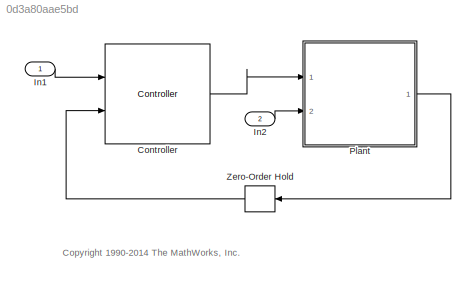
MODEL slx_0d3a80aae5bd
KIND model
CONFIG AbsTol = auto
CONFIG FixedStep = auto
CONFIG MaxStep = auto
CONFIG MinStep = auto
CONFIG PostLoadFcn = load 'sltestHeatpumpBusPostLoadFcn.mat'\nload 'temp_input.mat'
CONFIG RelTol = 1e-3
CONFIG SampleTimeConstraint = Unconstrained
CONFIG Solver = ode3
CONFIG SolverMode = Auto
CONFIG SolverName = ode3
CONFIG StartTime = 0.0
CONFIG StopTime = 3600
WORKSPACE source: MAT-file member
WORKSPACE MCOS: class17 (value not decoded)
WORKSPACE MCOS: class17 (value not decoded)
WORKSPACE MCOS: class17 (value not decoded)
BLOCK [Reference] Controller  REF=sltestHeatpumpLibraryExample/Controller
  Ports = [2, 1]
  SourceBlock = sltestHeatpumpLibraryExample/Controller
  SourceType = SubSystem
BLOCK [Inport] In1
  IconDisplay = Port number
BLOCK [Inport] In2
  IconDisplay = Port number
  Port = 2
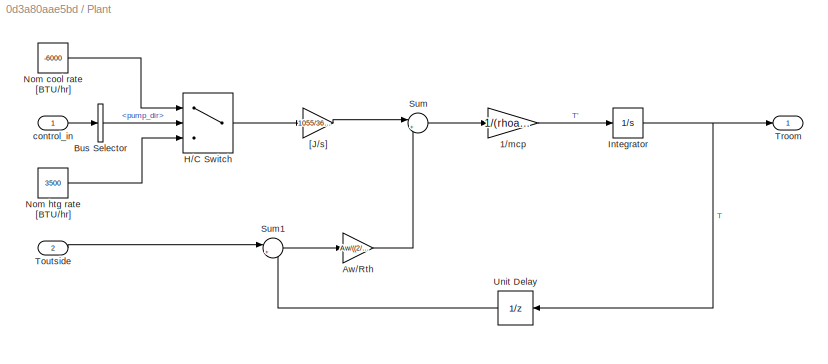
BLOCK [SubSystem] Plant
  MinAlgLoopOccurrences = on
  Ports = [2, 1]
  RequestExecContextInheritance = off
  TreatAsAtomicUnit = on
  Variant = off
BLOCK [Gain] Plant/1//mcp
  Gain = 1/(rhoair*V*cpair)
  OutDataTypeStr = Inherit: Inherit via internal rule
  ParamDataTypeStr = Inherit: Inherit via internal rule
  SaturateOnIntegerOverflow = off
BLOCK [Gain] Plant/Aw//Rth
  Gain = Aw/((2/h)*(Lw/kw))
  OutDataTypeStr = Inherit: Inherit via internal rule
  ParamDataTypeStr = Inherit: Inherit via internal rule
  SaturateOnIntegerOverflow = off
BLOCK [BusSelector] Plant/Bus Selector
  OutputSignals = pump_dir
  Ports = [1, 1]
BLOCK [Switch] Plant/H//C Switch
  Criteria = u2 > Threshold
  InputSameDT = off
  SaturateOnIntegerOverflow = off
BLOCK [Integrator] Plant/Integrator
  InitialCondition = 75
  Ports = [1, 1]
BLOCK [Constant] Plant/Nom cool rate [BTU//hr]
  Value = -6000
BLOCK [Constant] Plant/Nom htg rate [BTU//hr]
  Value = 3500
BLOCK [Sum] Plant/Sum
  IconShape = round
  InputSameDT = off
  Inputs = |++
  OutDataTypeStr = Inherit: Inherit via internal rule
  Ports = [2, 1]
  SaturateOnIntegerOverflow = off
BLOCK [Sum] Plant/Sum1
  IconShape = round
  InputSameDT = off
  Inputs = |+-
  OutDataTypeStr = Inherit: Inherit via internal rule
  Ports = [2, 1]
  SaturateOnIntegerOverflow = off
BLOCK [Inport] Plant/Toutside
  IconDisplay = Port number
  Port = 2
BLOCK [Outport] Plant/Troom
  IconDisplay = Port number
BLOCK [UnitDelay] Plant/Unit Delay
  InitialCondition = 75
  InputProcessing = Elements as channels (sample based)
  SampleTime = -1
BLOCK [Gain] Plant/[J//s]
  Gain = 1055/3600
  OutDataTypeStr = Inherit: Inherit via internal rule
  ParamDataTypeStr = Inherit: Inherit via internal rule
  SaturateOnIntegerOverflow = off
BLOCK [Inport] Plant/control_in
  IconDisplay = Port number
BLOCK [ZeroOrderHold] Zero-Order Hold
ANNOTATION (root): <copyright redacted>
LINE Controller:1 -> Plant:1
LINE In1:1 -> Controller:1
LINE In2:1 -> Plant:2
LINE Plant/1//mcp:1 -> Plant/Integrator:1
LINE Plant/Aw//Rth:1 -> Plant/Sum:2
LINE Plant/Bus Selector:1 -> Plant/H//C Switch:2
LINE Plant/H//C Switch:1 -> Plant/[J//s]:1
NET Plant/Integrator:1 -> Plant/Troom:1, Plant/Unit Delay:1
LINE Plant/Nom cool rate [BTU//hr]:1 -> Plant/H//C Switch:1
LINE Plant/Nom htg rate [BTU//hr]:1 -> Plant/H//C Switch:3
LINE Plant/Sum1:1 -> Plant/Aw//Rth:1
LINE Plant/Sum:1 -> Plant/1//mcp:1
LINE Plant/Toutside:1 -> Plant/Sum1:1
LINE Plant/Unit Delay:1 -> Plant/Sum1:2
LINE Plant/[J//s]:1 -> Plant/Sum:1
LINE Plant/control_in:1 -> Plant/Bus Selector:1
LINE Plant:1 -> Zero-Order Hold:1
LINE Zero-Order Hold:1 -> Controller:2
note: NET lines group one-source signal fan-out (src -> all destinations, sorted); 1:1 wires keep LINE
CHART Test Assessment states=6 transitions=22
  STATE_LABEL 'Test_Assessments'
  STATE_LABEL "Check_idle\na = control_out.fan_cmd == 0 &&...\n    control_out.pump_cmd == 0 &&...\n    control_out.pump_dir == 0;\nverify(a,'All signals must be off at idle');"
  STATE_LABEL "Check_fan\na = control_out.fan_cmd == 1 &&...\n    control_out.pump_cmd == 0 &&...\n    control_out.pump_dir == 0;\nverify(a, 'Only fan shall be active when 2 < delta T < 4');"
  STATE_LABEL "Check_cooling\na = control_out.fan_cmd == 1 &&...\n    control_out.pump_cmd == 1 &&...\n    control_out.pump_dir == 1;\nverify(a,'Cooling signal failure'),"
  STATE_LABEL "Check_heating\na = control_out.fan_cmd == 1 &&...\n    control_out.pump_cmd == 1 &&...\n    control_out.pump_dir == -1;\nverify(a,'Heating signal failure'),"
  STATE_LABEL 'Else'
  STATE_LABEL '[abs(Troom_in - Tset) < 2]'
  STATE_LABEL '[~in(Check_idle)]'
  STATE_LABEL '[abs(Troom_in - Tset) >= 2 && abs(Troom_in - Tset) < 4]'
  STATE_LABEL '[~in(Check_fan)]'
  STATE_LABEL '[(Troom_in - Tset) >= 4]'
  STATE_LABEL '[~in(Check_cooling)]'
  STATE_LABEL '[(Troom_in - Tset) <= -4]'
  STATE_LABEL '[~in(Check_heating)]'
  STATE_LABEL '[~in(Else)]'
  STATE_LABEL "Check_idle\na = control_out.fan_cmd == 0 &&...\n    control_out.pump_cmd == 0 &&...\n    control_out.pump_dir == 0;\nverify(a,'All signals must be off at idle');"
  STATE_LABEL "Check_fan\na = control_out.fan_cmd == 1 &&...\n    control_out.pump_cmd == 0 &&...\n    control_out.pump_dir == 0;\nverify(a, 'Only fan shall be active when 2 < delta T < 4');"
  STATE_LABEL "Check_cooling\na = control_out.fan_cmd == 1 &&...\n    control_out.pump_cmd == 1 &&...\n    control_out.pump_dir == 1;\nverify(a,'Cooling signal failure'),"
  STATE_LABEL "Check_heating\na = control_out.fan_cmd == 1 &&...\n    control_out.pump_cmd == 1 &&...\n    control_out.pump_dir == -1;\nverify(a,'Heating signal failure'),"
  STATE_LABEL 'Else'
CHART Test Sequence states=14 transitions=14
  STATE_LABEL 'Requirement1'
  STATE_LABEL 'Initialize\nTset = 75;\nTroom_in = 75;\nend_test = 0;'
  STATE_LABEL 'Test_signals\nTroom_in = 75+ramp(et*0.1);'
  STATE_LABEL 'End\nend_test = 1;'
  STATE_LABEL '[true]'
  STATE_LABEL '[Troom_in >= 75.5]'
  STATE_LABEL 'Initialize\nTset = 75;\nTroom_in = 75;\nend_test = 0;'
  STATE_LABEL 'Test_signals\nTroom_in = 75+ramp(et*0.1);'
  STATE_LABEL 'End\nend_test = 1;'
  STATE_LABEL 'Requirement2'
  STATE_LABEL 'Initialize\nTset = 75;\nTroom_in = 75;\nend_test = 0;'
  STATE_LABEL 'Test_signals\nTroom_in = 75 + ramp(et*0.1);'
  STATE_LABEL 'End\nend_test = 1;'
  STATE_LABEL '[true]'
  STATE_LABEL '[Troom_in >= 78]'
  STATE_LABEL 'Initialize\nTset = 75;\nTroom_in = 75;\nend_test = 0;'
  STATE_LABEL 'Test_signals\nTroom_in = 75 + ramp(et*0.1);'
  STATE_LABEL 'End\nend_test = 1;'
  STATE_LABEL 'Requirement3'
  STATE_LABEL 'Initialize\nTset = 75;\nTroom_in = 75;\nend_test = 0;'
  STATE_LABEL 'Cold_outside\nTroom_in = 75 - ramp(et*0.1);'
  STATE_LABEL 'Hot_outside\nTroom_in = 75 + ramp(et*0.1);'
  STATE_LABEL 'End\nend_test = 1;'
  STATE_LABEL '[true]'
  STATE_LABEL '[Troom_in <= 66]'
  STATE_LABEL '[Troom_in >= 84]'
  STATE_LABEL 'Initialize\nTset = 75;\nTroom_in = 75;\nend_test = 0;'
  STATE_LABEL 'Cold_outside\nTroom_in = 75 - ramp(et*0.1);'
  STATE_LABEL 'Hot_outside\nTroom_in = 75 + ramp(et*0.1);'
  STATE_LABEL 'End\nend_test = 1;'
  STATE_LABEL 'Stop'
